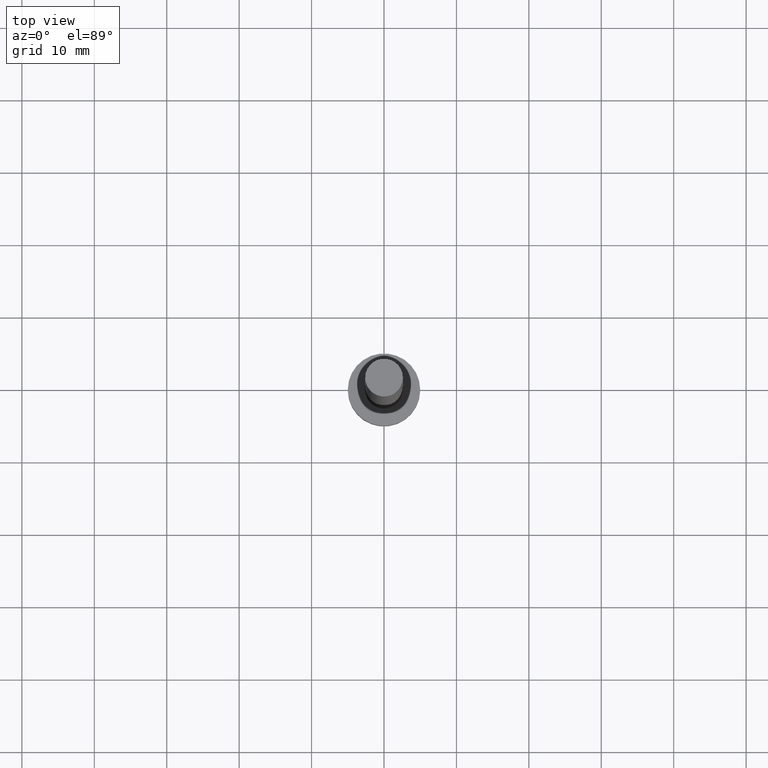
[diagram: clean part render]
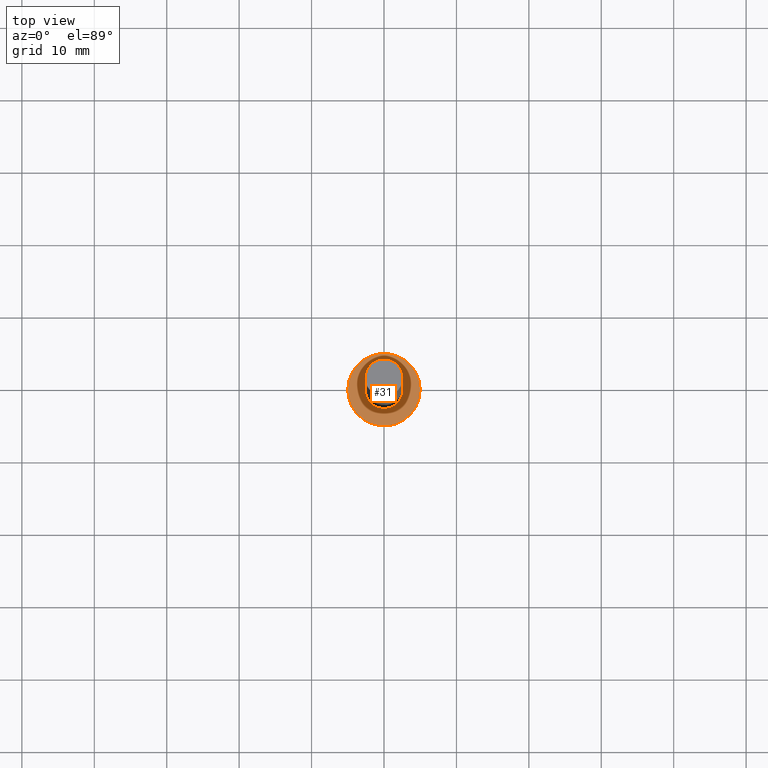
[diagram: same view with one face highlighted and labeled with its STEP entity id]
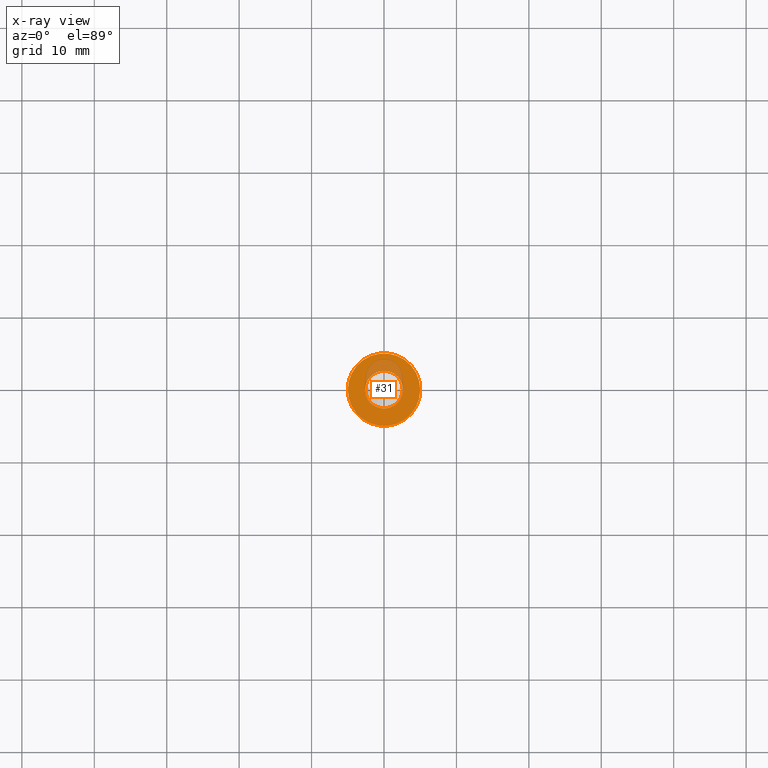
[diagram: x-ray of the same camera — body ghosted, the highlighted face saturated]
A machine part, top view. The second image highlights one B-rep face of the part: STEP entity #31.
The next image is the same camera in x-ray: the body ghosted, the highlighted face saturated — about 15% of this face is hidden behind the body in this view.
In plain terms, the highlighted planar face has unit normal (0, 0, 1).
Its self-contained STEP definition (entity closure, byte-faithful):
#1 = FACE_OUTER_BOUND ( 'NONE', #189, .T. ) ;
#11 = CARTESIAN_POINT ( 'NONE',  ( 5.000000000000000000, 6.123233995736766282E-16, 5.000000000000000000 ) ) ;
#17 = DIRECTION ( 'NONE',  ( 0.000000000000000000, 0.000000000000000000, 1.000000000000000000 ) ) ;
#23 = ORIENTED_EDGE ( 'NONE', *, *, #188, .T. ) ;
#24 = ORIENTED_EDGE ( 'NONE', *, *, #236, .F. ) ;
#31 = ADVANCED_FACE ( 'NONE', ( #45, #1 ), #123, .T. ) ;
#34 = CIRCLE ( 'NONE', #147, 2.600000000000000089 ) ;
#45 = FACE_BOUND ( 'NONE', #240, .T. ) ;
#53 = CIRCLE ( 'NONE', #180, 5.000000000000000000 ) ;
#65 = CARTESIAN_POINT ( 'NONE',  ( -2.600000000000000089, 0.000000000000000000, 5.000000000000000000 ) ) ;
#66 = CARTESIAN_POINT ( 'NONE',  ( 0.000000000000000000, 0.000000000000000000, 5.000000000000000000 ) ) ;
#77 = DIRECTION ( 'NONE',  ( 1.000000000000000000, 0.000000000000000000, -0.000000000000000000 ) ) ;
#80 = VERTEX_POINT ( 'NONE', #65 ) ;
#84 = DIRECTION ( 'NONE',  ( 0.000000000000000000, 0.000000000000000000, 1.000000000000000000 ) ) ;
#88 = EDGE_CURVE ( 'NONE', #80, #145, #108, .T. ) ;
#89 = DIRECTION ( 'NONE',  ( 1.000000000000000000, 0.000000000000000000, 0.000000000000000000 ) ) ;
#92 = DIRECTION ( 'NONE',  ( 0.000000000000000000, 0.000000000000000000, 1.000000000000000000 ) ) ;
#95 = DIRECTION ( 'NONE',  ( 1.000000000000000000, 0.000000000000000000, 0.000000000000000000 ) ) ;
#99 = CARTESIAN_POINT ( 'NONE',  ( 0.000000000000000000, 0.000000000000000000, 5.000000000000000000 ) ) ;
#104 = AXIS2_PLACEMENT_3D ( 'NONE', #99, #84, #77 ) ;
#108 = CIRCLE ( 'NONE', #119, 2.600000000000000089 ) ;
#110 = DIRECTION ( 'NONE',  ( 0.000000000000000000, 0.000000000000000000, 1.000000000000000000 ) ) ;
#111 = AXIS2_PLACEMENT_3D ( 'NONE', #197, #227, #149 ) ;
#119 = AXIS2_PLACEMENT_3D ( 'NONE', #228, #92, #89 ) ;
#123 = PLANE ( 'NONE',  #104 ) ;
#145 = VERTEX_POINT ( 'NONE', #150 ) ;
#146 = CARTESIAN_POINT ( 'NONE',  ( -5.000000000000000000, 0.000000000000000000, 5.000000000000000000 ) ) ;
#147 = AXIS2_PLACEMENT_3D ( 'NONE', #66, #17, #95 ) ;
#149 = DIRECTION ( 'NONE',  ( 1.000000000000000000, 0.000000000000000000, 0.000000000000000000 ) ) ;
#150 = CARTESIAN_POINT ( 'NONE',  ( 2.600000000000000089, 3.184081677783118191E-16, 5.000000000000000000 ) ) ;
#160 = EDGE_CURVE ( 'NONE', #170, #191, #53, .T. ) ;
#170 = VERTEX_POINT ( 'NONE', #146 ) ;
#171 = ORIENTED_EDGE ( 'NONE', *, *, #88, .F. ) ;
#172 = DIRECTION ( 'NONE',  ( 1.000000000000000000, 0.000000000000000000, 0.000000000000000000 ) ) ;
#180 = AXIS2_PLACEMENT_3D ( 'NONE', #243, #110, #172 ) ;
#188 = EDGE_CURVE ( 'NONE', #191, #170, #249, .T. ) ;
#189 = EDGE_LOOP ( 'NONE', ( #226, #23 ) ) ;
#191 = VERTEX_POINT ( 'NONE', #11 ) ;
#197 = CARTESIAN_POINT ( 'NONE',  ( 0.000000000000000000, 0.000000000000000000, 5.000000000000000000 ) ) ;
#226 = ORIENTED_EDGE ( 'NONE', *, *, #160, .T. ) ;
#227 = DIRECTION ( 'NONE',  ( 0.000000000000000000, 0.000000000000000000, 1.000000000000000000 ) ) ;
#228 = CARTESIAN_POINT ( 'NONE',  ( 0.000000000000000000, 0.000000000000000000, 5.000000000000000000 ) ) ;
#236 = EDGE_CURVE ( 'NONE', #145, #80, #34, .T. ) ;
#240 = EDGE_LOOP ( 'NONE', ( #171, #24 ) ) ;
#243 = CARTESIAN_POINT ( 'NONE',  ( 0.000000000000000000, 0.000000000000000000, 5.000000000000000000 ) ) ;
#249 = CIRCLE ( 'NONE', #111, 5.000000000000000000 ) ;